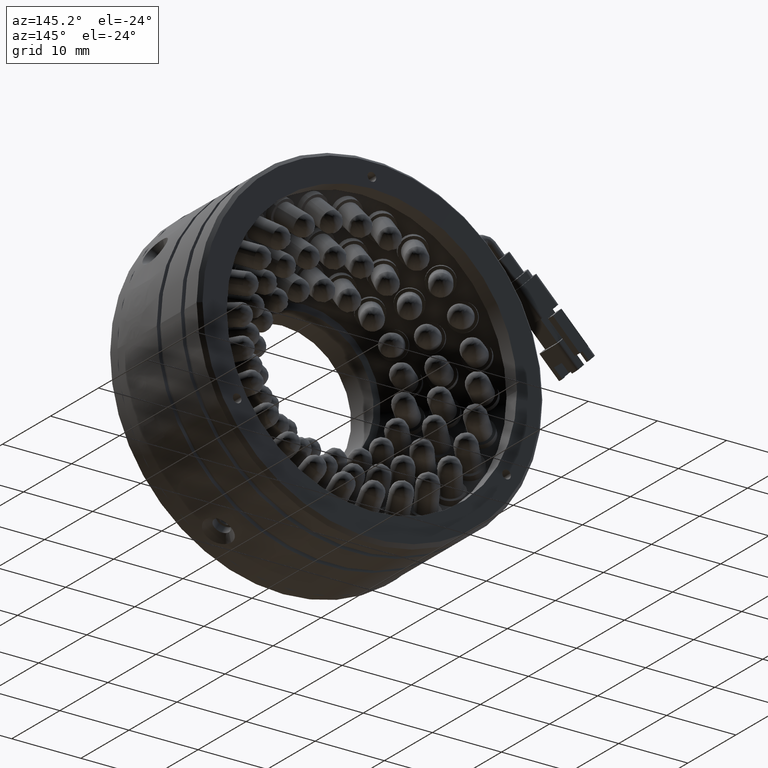
[diagram: clean part render]
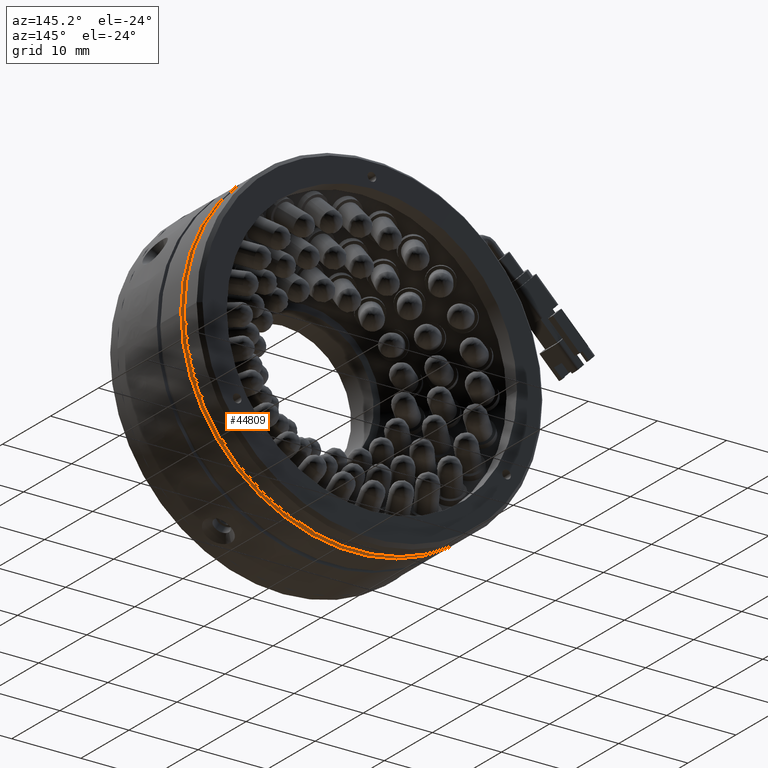
[diagram: same view with one face highlighted and labeled with its STEP entity id]
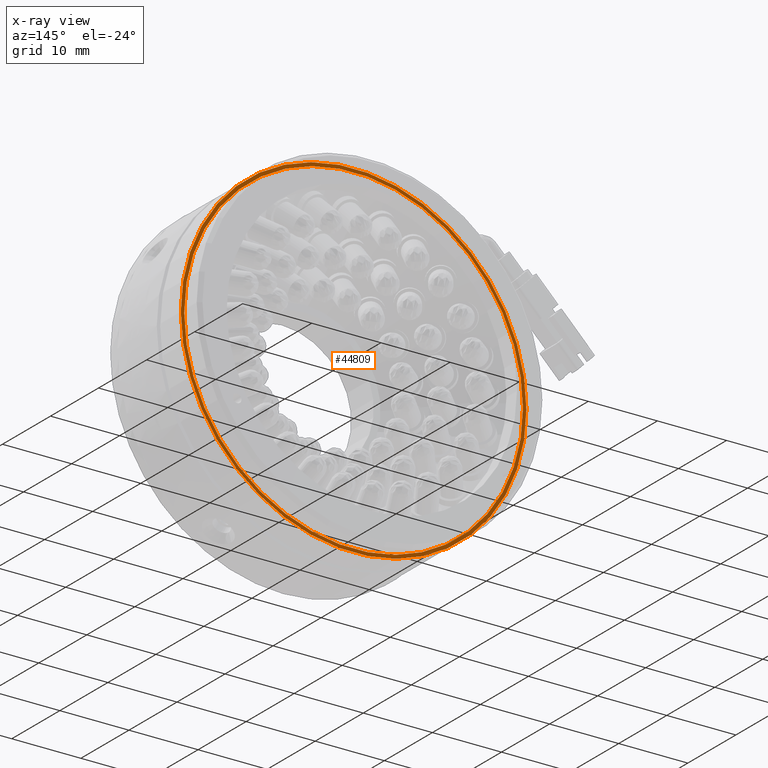
[diagram: x-ray of the same camera — body ghosted, the highlighted face saturated]
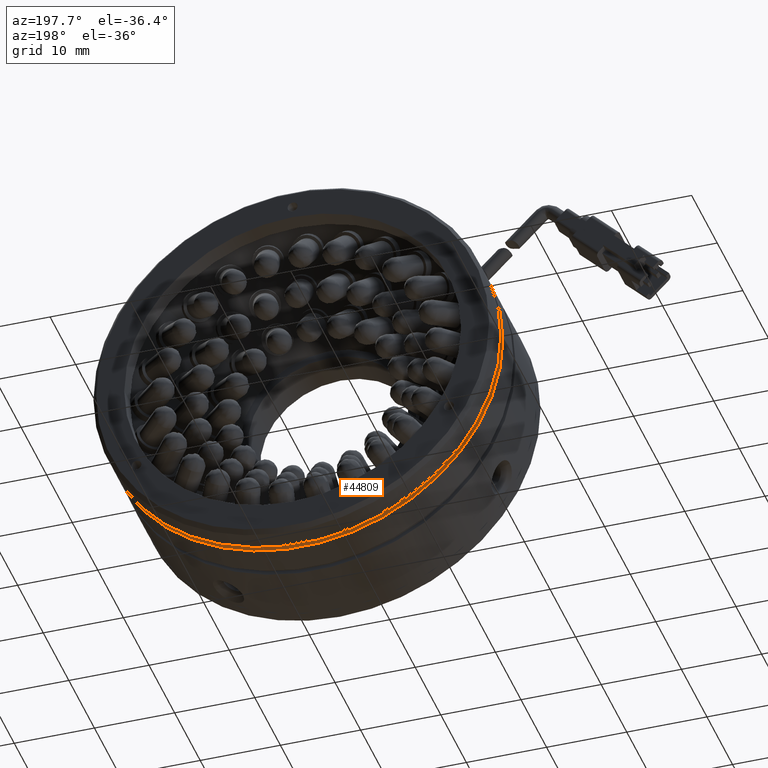
[diagram: same view with one face highlighted and labeled with its STEP entity id]
A machine part, auxiliary view. The second image highlights one B-rep face of the part: STEP entity #44809.
The next image is the same camera in x-ray: the body ghosted, the highlighted face saturated — about 0% of this face is hidden behind the body in this view.
A second angle (auxiliary view) of the same face is appended — the face is thin or edge-on in the first view.
In plain terms, the highlighted planar face has unit normal (0, -1, 0).
Its self-contained STEP definition (entity closure, byte-faithful):
#891 = VERTEX_POINT ( 'NONE', #60872 ) ;
#1219 = CARTESIAN_POINT ( 'NONE',  ( 20.47418136128692400, 15.36823414706071000, 3.361451086403000600E-015 ) ) ;
#2314 = EDGE_CURVE ( 'NONE', #36819, #891, #8760, .T. ) ;
#3014 = CIRCLE ( 'NONE', #29807, 25.00000000000000000 ) ;
#8491 = CARTESIAN_POINT ( 'NONE',  ( 20.97418136128692400, 15.36823414706071000, 3.422791846577617100E-015 ) ) ;
#8760 = CIRCLE ( 'NONE', #21732, 24.50000000000000000 ) ;
#8793 = AXIS2_PLACEMENT_3D ( 'NONE', #23499, #56855, #28309 ) ;
#8941 = DIRECTION ( 'NONE',  ( -0.0000000000000000000, -1.000000000000000000, 0.0000000000000000000 ) ) ;
#14006 = DIRECTION ( 'NONE',  ( 0.0000000000000000000, -1.000000000000000000, 0.0000000000000000000 ) ) ;
#14433 = AXIS2_PLACEMENT_3D ( 'NONE', #42712, #14006, #47493 ) ;
#14911 = VERTEX_POINT ( 'NONE', #41596 ) ;
#15898 = EDGE_LOOP ( 'NONE', ( #54270, #23905 ) ) ;
#17674 = DIRECTION ( 'NONE',  ( -0.0000000000000000000, -1.000000000000000000, 0.0000000000000000000 ) ) ;
#21732 = AXIS2_PLACEMENT_3D ( 'NONE', #29026, #30349, #30213 ) ;
#23479 = PLANE ( 'NONE',  #14433 ) ;
#23499 = CARTESIAN_POINT ( 'NONE',  ( -4.025818638713078100, 15.36823414706071000, 3.557538378468061400E-016 ) ) ;
#23905 = ORIENTED_EDGE ( 'NONE', *, *, #2314, .F. ) ;
#24729 = EDGE_LOOP ( 'NONE', ( #35860, #44821 ) ) ;
#25146 = CIRCLE ( 'NONE', #35672, 25.00000000000000000 ) ;
#28309 = DIRECTION ( 'NONE',  ( -1.000000000000000000, 0.0000000000000000000, -2.168404344971005700E-019 ) ) ;
#28732 = EDGE_CURVE ( 'NONE', #891, #36819, #49553, .T. ) ;
#29026 = CARTESIAN_POINT ( 'NONE',  ( -4.025818638713078100, 15.36823414706071000, 3.557538378468061400E-016 ) ) ;
#29807 = AXIS2_PLACEMENT_3D ( 'NONE', #46364, #17674, #51161 ) ;
#30213 = DIRECTION ( 'NONE',  ( -1.000000000000000000, 0.0000000000000000000, -2.168404344971005700E-019 ) ) ;
#30349 = DIRECTION ( 'NONE',  ( 0.0000000000000000000, 1.000000000000000000, -0.0000000000000000000 ) ) ;
#33692 = EDGE_CURVE ( 'NONE', #14911, #48834, #3014, .T. ) ;
#35672 = AXIS2_PLACEMENT_3D ( 'NONE', #37685, #8941, #42500 ) ;
#35860 = ORIENTED_EDGE ( 'NONE', *, *, #33692, .F. ) ;
#36819 = VERTEX_POINT ( 'NONE', #1219 ) ;
#37124 = EDGE_CURVE ( 'NONE', #48834, #14911, #25146, .T. ) ;
#37685 = CARTESIAN_POINT ( 'NONE',  ( -4.025818638713078100, 15.36823414706071000, 3.557538378468061400E-016 ) ) ;
#38403 = FACE_BOUND ( 'NONE', #15898, .T. ) ;
#41596 = CARTESIAN_POINT ( 'NONE',  ( -29.02581863871307600, 15.36823414706071000, 3.503328269843786200E-016 ) ) ;
#42500 = DIRECTION ( 'NONE',  ( -1.000000000000000000, 0.0000000000000000000, -2.168404344971001200E-019 ) ) ;
#42712 = CARTESIAN_POINT ( 'NONE',  ( -4.025818638713078100, 15.36823414706071000, 25.00000000000000000 ) ) ;
#44809 = ADVANCED_FACE ( 'NONE', ( #51075, #38403 ), #23479, .F. ) ;
#44821 = ORIENTED_EDGE ( 'NONE', *, *, #37124, .F. ) ;
#46364 = CARTESIAN_POINT ( 'NONE',  ( -4.025818638713078100, 15.36823414706071000, 3.557538378468061400E-016 ) ) ;
#47493 = DIRECTION ( 'NONE',  ( 1.000000000000000000, 0.0000000000000000000, 2.168404344971008400E-019 ) ) ;
#48834 = VERTEX_POINT ( 'NONE', #8491 ) ;
#49553 = CIRCLE ( 'NONE', #8793, 24.50000000000000000 ) ;
#51075 = FACE_OUTER_BOUND ( 'NONE', #24729, .T. ) ;
#51161 = DIRECTION ( 'NONE',  ( -1.000000000000000000, 0.0000000000000000000, -2.168404344971001200E-019 ) ) ;
#54270 = ORIENTED_EDGE ( 'NONE', *, *, #28732, .F. ) ;
#56855 = DIRECTION ( 'NONE',  ( 0.0000000000000000000, 1.000000000000000000, -0.0000000000000000000 ) ) ;
#60872 = CARTESIAN_POINT ( 'NONE',  ( -28.52581863871307600, 15.36823414706071000, 3.504412472016271700E-016 ) ) ;